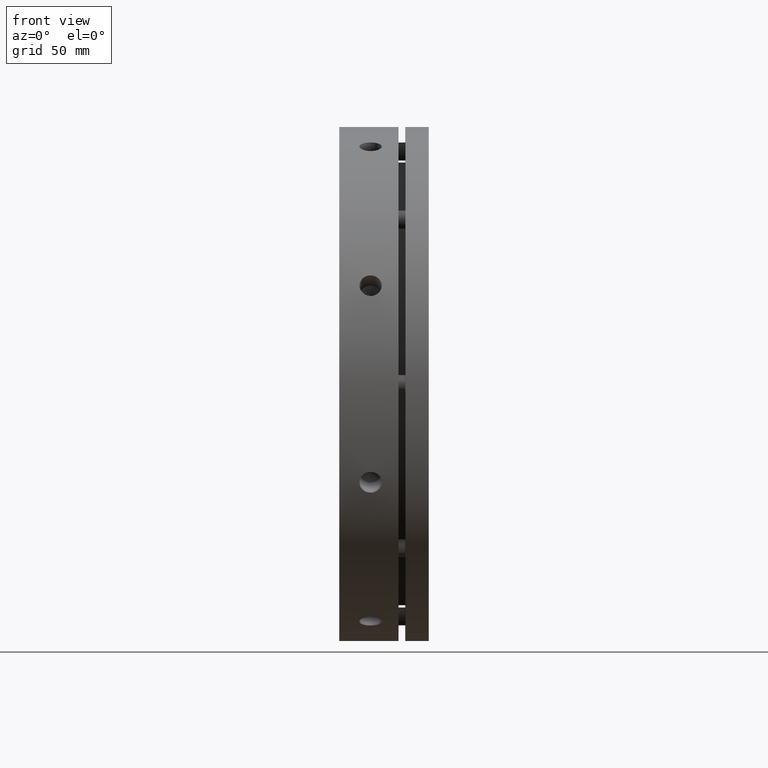
[diagram: clean part render]
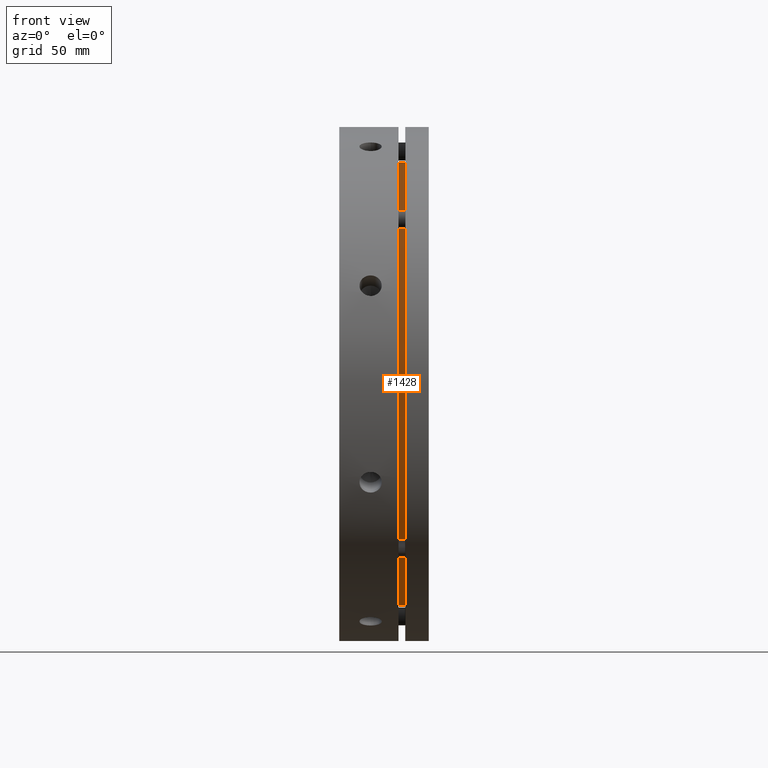
[diagram: same view with one face highlighted and labeled with its STEP entity id]
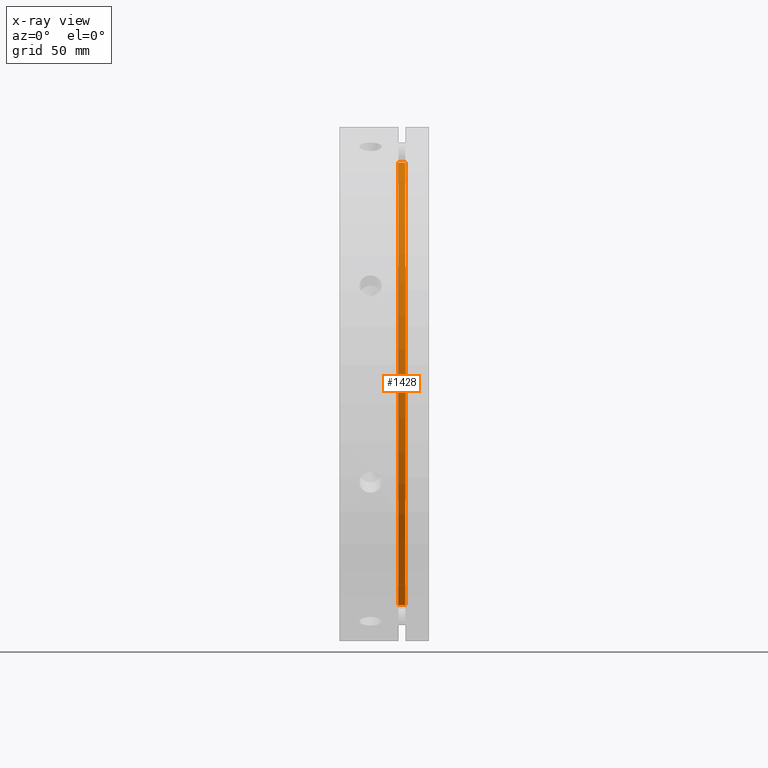
[diagram: x-ray of the same camera — body ghosted, the highlighted face saturated]
A machine part, front view. The second image highlights one B-rep face of the part: STEP entity #1428.
The next image is the same camera in x-ray: the body ghosted, the highlighted face saturated — about 0% of this face is hidden behind the body in this view.
In plain terms, the highlighted cylindrical surface (partial cylindrical patch) has radius 99 mm, axis along (-1, 0, 0).
Its self-contained STEP definition (entity closure, byte-faithful):
#372 = DIRECTION ( 'NONE',  ( 0.0000000000000000000, 0.0000000000000000000, 1.000000000000000000 ) ) ;
#374 = DIRECTION ( 'NONE',  ( -1.000000000000000000, 0.0000000000000000000, 0.0000000000000000000 ) ) ;
#376 = CARTESIAN_POINT ( 'NONE',  ( 27.99999999999997200, 0.0000000000000000000, 0.0000000000000000000 ) ) ;
#915 = CARTESIAN_POINT ( 'NONE',  ( 29.49999999999997500, 0.0000000000000000000, 0.0000000000000000000 ) ) ;
#916 = DIRECTION ( 'NONE',  ( -1.000000000000000000, 0.0000000000000000000, 0.0000000000000000000 ) ) ;
#917 = DIRECTION ( 'NONE',  ( 0.0000000000000000000, 0.0000000000000000000, 1.000000000000000000 ) ) ;
#1037 = CARTESIAN_POINT ( 'NONE',  ( 29.49999999999997500, 1.212400331155879700E-014, -99.00000000000000000 ) ) ;
#1280 = CIRCLE ( 'NONE', #5056, 99.00000000000000000 ) ;
#1428 = ADVANCED_FACE ( 'NONE', ( #5449 ), #5389, .T. ) ;
#1735 = CARTESIAN_POINT ( 'NONE',  ( 26.49999999999996800, 0.0000000000000000000, 99.00000000000000000 ) ) ;
#1739 = CARTESIAN_POINT ( 'NONE',  ( 26.49999999999996800, 1.212400331155879700E-014, -99.00000000000000000 ) ) ;
#1776 = CARTESIAN_POINT ( 'NONE',  ( 29.49999999999997500, 0.0000000000000000000, 99.00000000000000000 ) ) ;
#2255 = DIRECTION ( 'NONE',  ( -1.000000000000000000, 0.0000000000000000000, 0.0000000000000000000 ) ) ;
#2257 = CARTESIAN_POINT ( 'NONE',  ( 27.99999999999997200, 0.0000000000000000000, 99.00000000000000000 ) ) ;
#2258 = CARTESIAN_POINT ( 'NONE',  ( 27.99999999999997200, 1.212400331155879700E-014, -99.00000000000000000 ) ) ;
#2264 = DIRECTION ( 'NONE',  ( -1.000000000000000000, 0.0000000000000000000, 0.0000000000000000000 ) ) ;
#2270 = CARTESIAN_POINT ( 'NONE',  ( 26.49999999999996800, 0.0000000000000000000, 0.0000000000000000000 ) ) ;
#2271 = DIRECTION ( 'NONE',  ( 1.000000000000000000, -0.0000000000000000000, -0.0000000000000000000 ) ) ;
#2272 = DIRECTION ( 'NONE',  ( 0.0000000000000000000, 0.0000000000000000000, 1.000000000000000000 ) ) ;
#3570 = EDGE_LOOP ( 'NONE', ( #4534, #4533, #4532, #4530 ) ) ;
#4027 = AXIS2_PLACEMENT_3D ( 'NONE', #2270, #2271, #2272 ) ;
#4530 = ORIENTED_EDGE ( 'NONE', *, *, #5654, .T. ) ;
#4532 = ORIENTED_EDGE ( 'NONE', *, *, #5652, .T. ) ;
#4533 = ORIENTED_EDGE ( 'NONE', *, *, #5235, .T. ) ;
#4534 = ORIENTED_EDGE ( 'NONE', *, *, #5650, .F. ) ;
#5056 = AXIS2_PLACEMENT_3D ( 'NONE', #915, #916, #917 ) ;
#5199 = AXIS2_PLACEMENT_3D ( 'NONE', #376, #374, #372 ) ;
#5235 = EDGE_CURVE ( 'NONE', #5345, #5466, #1280, .T. ) ;
#5345 = VERTEX_POINT ( 'NONE', #1037 ) ;
#5389 = CYLINDRICAL_SURFACE ( 'NONE', #5199, 99.00000000000000000 ) ;
#5391 = VERTEX_POINT ( 'NONE', #1735 ) ;
#5398 = VERTEX_POINT ( 'NONE', #1739 ) ;
#5449 = FACE_OUTER_BOUND ( 'NONE', #3570, .T. ) ;
#5466 = VERTEX_POINT ( 'NONE', #1776 ) ;
#5650 = EDGE_CURVE ( 'NONE', #5345, #5398, #5870, .T. ) ;
#5652 = EDGE_CURVE ( 'NONE', #5466, #5391, #5924, .T. ) ;
#5654 = EDGE_CURVE ( 'NONE', #5391, #5398, #5874, .T. ) ;
#5870 = LINE ( 'NONE', #2258, #5898 ) ;
#5874 = CIRCLE ( 'NONE', #4027, 99.00000000000000000 ) ;
#5898 = VECTOR ( 'NONE', #2255, 1000.000000000000000 ) ;
#5907 = VECTOR ( 'NONE', #2264, 1000.000000000000000 ) ;
#5924 = LINE ( 'NONE', #2257, #5907 ) ;